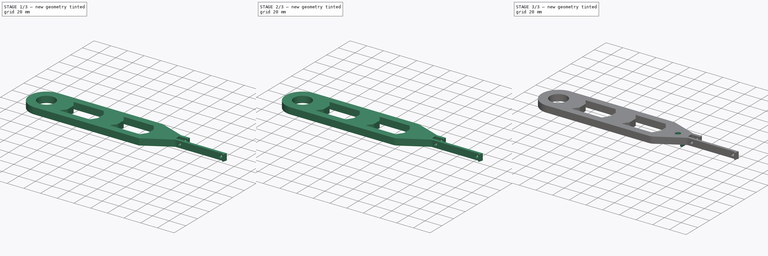
[diagram: build sequence overview — one tinted view per stage of 3, left to right]
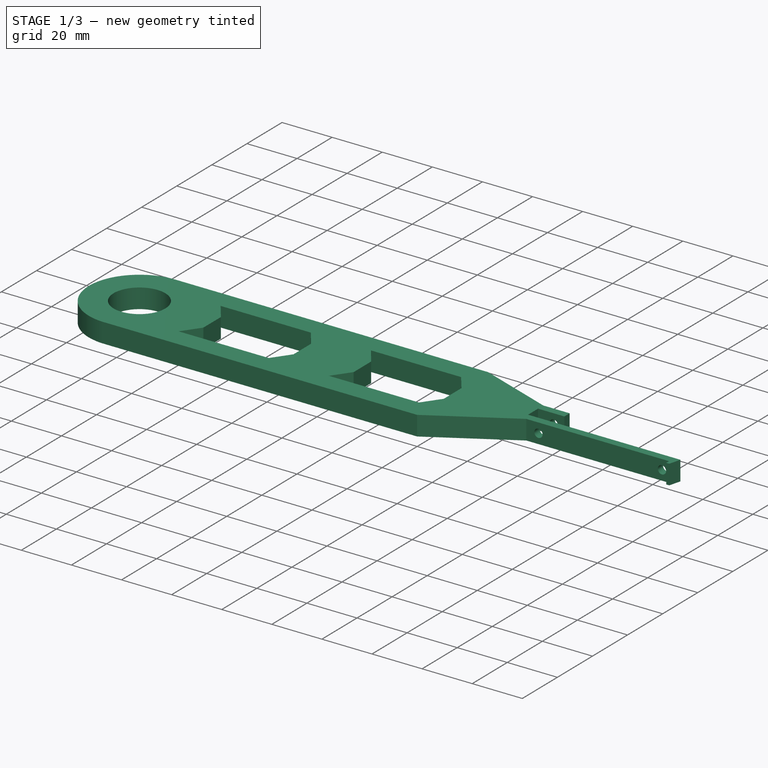
[diagram: stage 1 of 3 — iso view after this stage's code; geometry added in this stage tinted green]
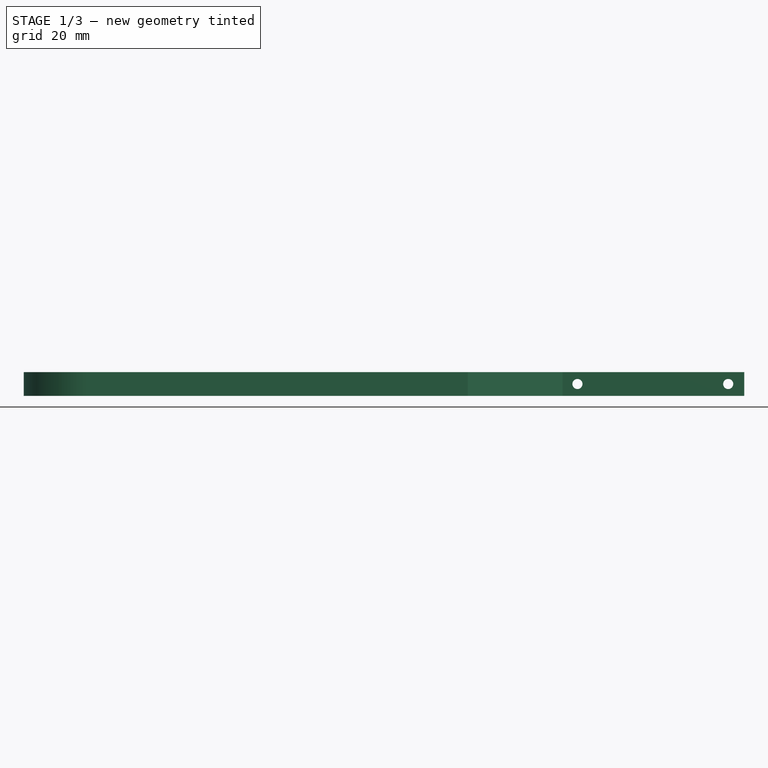
[diagram: stage 1 of 3 — front view after this stage's code; geometry added in this stage tinted green]
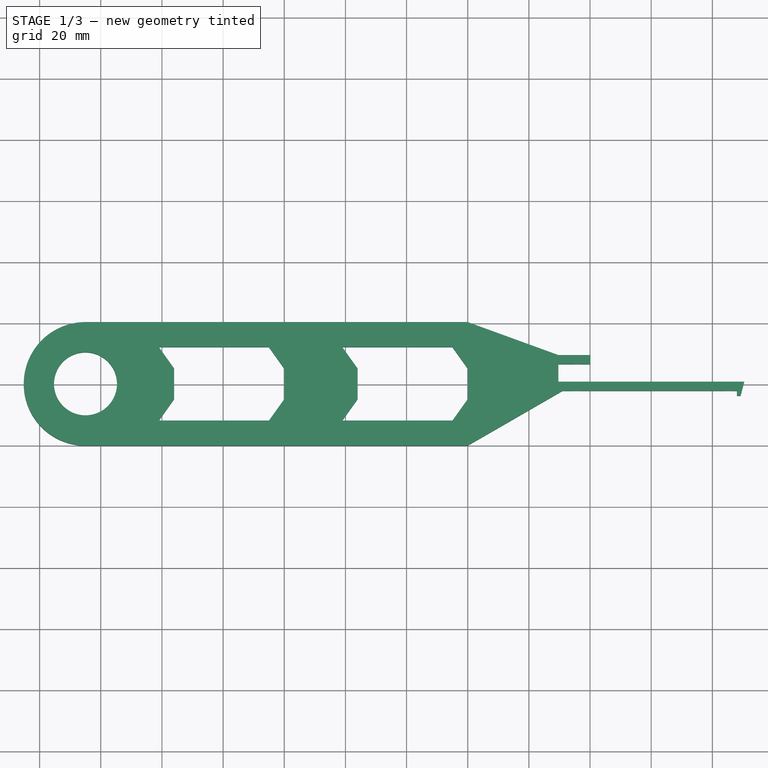
[diagram: stage 1 of 3 — top view after this stage's code; geometry added in this stage tinted green]
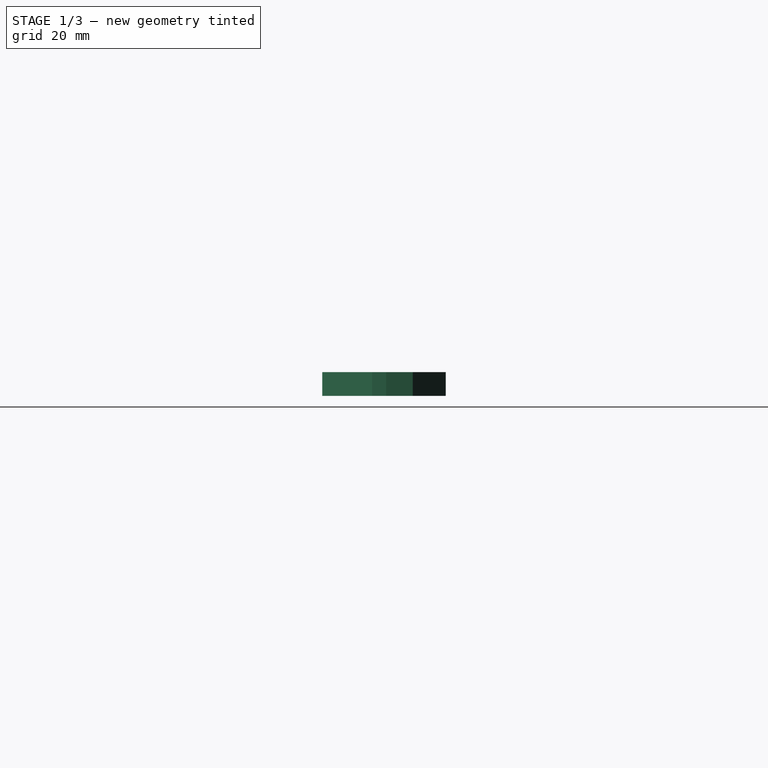
[diagram: stage 1 of 3 — right view after this stage's code; geometry added in this stage tinted green]
FCSTD DOCUMENT  (FreeCAD 0.18R16155 (Git))
Label: pro_w_spool_holder_v2
License: All rights reserved
LicenseURL: http://en.wikipedia.org/wiki/All_rights_reserved
objects: Sketcher::SketchObject×4, PartDesign::Pad×2, PartDesign::Hole×2, PartDesign::Fillet×2, PartDesign::Body×1, App::Part×1
note: 15 computed .brp shape members not serialized (recipe doc carries the construction recipe); baked Part::Feature solids carry a one-line shape summary decoded from their .brp

FEATURE [Sketcher::SketchObject] Sketch
  MapMode = 5
  Support = -> [XY_Plane001]
  sketch-geometry (43):
    g0: Circle CenterX=-125 CenterY=20.2 CenterZ=0 NormalX=0 NormalY=0 NormalZ=1 AngleXU=0 Radius=10.3
    g1: ArcOfCircle CenterX=-125 CenterY=20.2 CenterZ=0 NormalX=0 NormalY=0 NormalZ=1 AngleXU=0 Radius=20.2 StartAngle=1.5708 EndAngle=4.71239
    g2: LineSegment StartX=-125 StartY=40.4 StartZ=0 EndX=0 EndY=40.4 EndZ=0
    g3: LineSegment StartX=-125 StartY=0 StartZ=0 EndX=0 EndY=0 EndZ=0
    g4: LineSegment [constr] StartX=-125 StartY=40.4 StartZ=0 EndX=-125 EndY=20.2 EndZ=0
    g5: LineSegment [constr] StartX=-125 StartY=20.2 StartZ=0 EndX=-125 EndY=0 EndZ=0
    g6: LineSegment [constr] StartX=0 StartY=40.4 StartZ=0 EndX=-3.6e-15 EndY=0 EndZ=0
    g7: LineSegment StartX=31.0304 StartY=17.9154 StartZ=0 EndX=88.0304 EndY=17.9154 EndZ=0
    g8: LineSegment StartX=31.0304 StartY=17.9154 StartZ=0 EndX=-3.6e-15 EndY=0 EndZ=0
    g9: LineSegment StartX=0 StartY=40.4 StartZ=0 EndX=29.6304 EndY=29.6154 EndZ=0
    g10: LineSegment StartX=29.6304 StartY=29.6154 StartZ=0 EndX=40.1304 EndY=29.6154 EndZ=0
    g11: LineSegment StartX=40.1304 StartY=29.6154 StartZ=0 EndX=40.1304 EndY=26.6154 EndZ=0
    g12: LineSegment StartX=40.1304 StartY=26.6154 StartZ=0 EndX=29.6304 EndY=26.6154 EndZ=0
    g13: LineSegment StartX=29.6304 StartY=26.6154 StartZ=0 EndX=29.6304 EndY=20.9154 EndZ=0
    g14: LineSegment StartX=31.0304 StartY=20.9154 StartZ=0 EndX=88.0304 EndY=20.9154 EndZ=0
    g15: LineSegment StartX=29.6304 StartY=20.9154 StartZ=0 EndX=31.0304 EndY=20.9154 EndZ=0
    g16: LineSegment StartX=88.0304 StartY=20.9154 StartZ=0 EndX=90.4304 EndY=20.9154 EndZ=0
    g17: LineSegment StartX=90.4304 StartY=20.9154 StartZ=0 EndX=89.2304 EndY=16.3154 EndZ=0
    g18: LineSegment StartX=89.2304 StartY=16.3154 StartZ=0 EndX=88.0304 EndY=16.3154 EndZ=0
    g19: LineSegment StartX=88.0304 StartY=16.3154 StartZ=0 EndX=88.0304 EndY=17.9154 EndZ=0
    g20: LineSegment [constr] StartX=88.0304 StartY=20.9154 StartZ=0 EndX=88.0304 EndY=17.9154 EndZ=0
    g21: LineSegment [constr] StartX=-125 StartY=20.2 StartZ=0 EndX=-101 EndY=20.2 EndZ=0
    g22: LineSegment StartX=-101 StartY=32.2 StartZ=0 EndX=-96 EndY=25.2 EndZ=0
    g23: LineSegment StartX=-96 StartY=25.2 StartZ=0 EndX=-96 EndY=15.2 EndZ=0
    g24: LineSegment StartX=-96 StartY=15.2 StartZ=0 EndX=-101 EndY=8.2 EndZ=0
    g25: LineSegment StartX=-101 StartY=8.2 StartZ=0 EndX=-65 EndY=8.2 EndZ=0
    g26: LineSegment StartX=-65 StartY=8.2 StartZ=0 EndX=-60 EndY=15.2 EndZ=0
    g27: LineSegment StartX=-60 StartY=15.2 StartZ=0 EndX=-60 EndY=25.2 EndZ=0
    g28: LineSegment StartX=-60 StartY=25.2 StartZ=0 EndX=-65 EndY=32.2 EndZ=0
    g29: LineSegment StartX=-65 StartY=32.2 StartZ=0 EndX=-101 EndY=32.2 EndZ=0
    g30: LineSegment StartX=-41 StartY=32.2 StartZ=0 EndX=-36 EndY=25.2 EndZ=0
    g31: LineSegment StartX=-36 StartY=25.2 StartZ=0 EndX=-36 EndY=15.2 EndZ=0
    g32: LineSegment StartX=-36 StartY=15.2 StartZ=0 EndX=-41 EndY=8.2 EndZ=0
    g33: LineSegment StartX=-41 StartY=8.2 StartZ=0 EndX=-5 EndY=8.2 EndZ=0
    g34: LineSegment StartX=-5 StartY=8.2 StartZ=0 EndX=1.8e-15 EndY=15.2 EndZ=0
    g35: LineSegment StartX=1.8e-15 StartY=15.2 StartZ=0 EndX=3e-15 EndY=25.2 EndZ=0
    g36: LineSegment StartX=3e-15 StartY=25.2 StartZ=0 EndX=-5 EndY=32.2 EndZ=0
    g37: LineSegment StartX=-5 StartY=32.2 StartZ=0 EndX=-41 EndY=32.2 EndZ=0
    g38: LineSegment [constr] StartX=-41 StartY=32.2 StartZ=0 EndX=-41 EndY=8.2 EndZ=0
    g39: LineSegment [constr] StartX=-101 StartY=32.2 StartZ=0 EndX=-101 EndY=8.2 EndZ=0
    g40: LineSegment [constr] StartX=-96 StartY=25.2 StartZ=0 EndX=-101 EndY=20.2 EndZ=0
    g41: LineSegment [constr] StartX=-96 StartY=15.2 StartZ=0 EndX=-101 EndY=20.2 EndZ=0
    g42: LineSegment [constr] StartX=-60 StartY=25.2 StartZ=0 EndX=-36 EndY=25.2 EndZ=0
  constraints (120):
    c: Diameter(g0) = 20.6
    c: Coincident(g4,g2)
    c: Coincident(g4,g0)
    c: Coincident(g5,g0)
    c: Coincident(g5,g3)
    c: Coincident(g3,g1)
    c: Coincident(g1,g2)
    c: Coincident(g1,g0)
    c: Vertical(g4)
    c: Equal(g4,g5)
    c: Parallel(g5,g4)
    c: Parallel(g2,g3)
    c: Horizontal(g2)
    c: Equal(g2,g3)
    c: Coincident(g6,g2)
    c: Coincident(g6,g3)
    c: Distance(g3) = 125
    c: Distance(g6) = 40.4
    c: Coincident(g3,g-1)
    c: Equal(g7,g14)
    c: Parallel(g14,g7)
    c: Parallel(g14,g16)
    c: Parallel(g14,g15)
    c: Parallel(g7,g18)
    c: Perpendicular(g7,g19)
    c: Perpendicular(g13,g15)
    c: Parallel(g12,g14)
    c: Parallel(g13,g11)
    c: Coincident(g16,g14)
    c: Coincident(g14,g15)
    c: Coincident(g13,g15)
    c: Coincident(g11,g12)
    c: Coincident(g12,g13)
    c: Coincident(g10,g9)
    c: Coincident(g8,g7)
    c: Coincident(g8,g3)
    c: Coincident(g9,g2)
    c: Coincident(g19,g7)
    c: Coincident(g18,g19)
    c: Coincident(g18,g17)
    c: Coincident(g17,g16)
    c: Distance(g20) = 3
    c: Parallel(g20,g19)
    c: Coincident(g20,g7)
    c: Coincident(g20,g14)
    c: Distance(g7) = 57
    c: Distance(g16) = 2.4
    c: Distance(g18) = 1.2
    c: Distance(g19) = 1.6
    c: Angle(g8,g7) = 2.61799
    c: Parallel(g7,g3)
    c: Coincident(g10,g11)
    c: Parallel(g10,g12)
    c: Distance(g11) = 3
    c: Equal(g10,g12)
    c: Distance(g10) = 10.5
    c: Distance(g15) = 1.4
    c: Distance(g13) = 5.7
    c: Angle(g10,g9) = 2.79253
    c: Coincident(g0,g21)
    c: Perpendicular(g21,g5)
    c: Coincident(g22,g23)
    c: Coincident(g23,g24)
    c: Coincident(g24,g25)
    c: Coincident(g25,g26)
    c: Coincident(g26,g27)
    c: Coincident(g27,g28)
    c: Coincident(g28,g29)
    c: Coincident(g29,g22)
    c: Coincident(g30,g31)
    c: Coincident(g31,g32)
    c: Coincident(g32,g33)
    c: Coincident(g33,g34)
    c: Coincident(g34,g35)
    c: Coincident(g35,g36)
    c: Coincident(g36,g37)
    c: Coincident(g37,g30)
    c: Parallel(g23,g27)
    c: Parallel(g27,g31)
    c: Parallel(g31,g35)
    c: Parallel(g33,g37)
    c: Parallel(g29,g25)
    c: Parallel(g25,g33)
    c: Parallel(g33,g3)
    c: Parallel(g35,g6)
    c: Parallel(g36,g30)
    c: Parallel(g32,g34)
    c: Parallel(g28,g22)
    c: Parallel(g24,g26)
    c: Equal(g36,g34)
    c: Equal(g34,g32)
    c: Equal(g32,g30)
    c: Equal(g28,g26)
    c: Equal(g26,g24)
    c: Equal(g24,g22)
    c: Equal(g28,g30)
    c: Coincident(g38,g30)
    c: Coincident(g38,g32)
    c: Coincident(g39,g22)
    c: Coincident(g39,g24)
    c: Parallel(g31,g38)
    c: Parallel(g38,g39)
    c: Equal(g38,g39)
    c: PointOnObject(g21,g39)
    c: Coincident(g40,g22)
    c: Coincident(g40,g21)
    c: Coincident(g41,g21)
    c: Coincident(g41,g23)
    c: Equal(g41,g40)
    c: Perpendicular(g40,g41)
    c: Distance(g23) = 10
    c: Equal(g31,g27)
    c: Equal(g37,g29)
    c: Distance(g29) = 36
    c: Distance(g39) = 24
    c: PointOnObject(g35,g6)
    c: Coincident(g42,g30)
    c: Coincident(g42,g27)
    c: Parallel(g42,g29)
    c: Equal(g42,g21)
FEATURE [PartDesign::Pad] Pad
  Length = 7.8
  Length2 = 100
  Profile = -> Sketch
  Type = 0
FEATURE [Sketcher::SketchObject] Sketch001
  ExternalGeometry = -> [Pad]
  MapMode = 5
  Placement = pos=(0,17.9154,0) rot=(1,0,0;1.5708rad)
  Support = -> [Pad]
  sketch-geometry (10):
    g0: Circle CenterX=85.1804 CenterY=3.9 CenterZ=0 NormalX=0 NormalY=0 NormalZ=1 AngleXU=0 Radius=1.65
    g1: Circle CenterX=35.8804 CenterY=3.9 CenterZ=0 NormalX=0 NormalY=0 NormalZ=1 AngleXU=0 Radius=1.65
    g2: LineSegment [constr] StartX=33.0304 StartY=0 StartZ=0 EndX=88.0304 EndY=0 EndZ=0
    g3: LineSegment [constr] StartX=88.0304 StartY=3.9 StartZ=0 EndX=85.1804 EndY=3.9 EndZ=0
    g4: LineSegment [constr] StartX=85.1804 StartY=0 StartZ=0 EndX=85.1804 EndY=3.9 EndZ=0
    g5: LineSegment [constr] StartX=85.1804 StartY=7.8 StartZ=0 EndX=85.1804 EndY=3.9 EndZ=0
    g6: LineSegment [constr] StartX=33.0304 StartY=0 StartZ=0 EndX=33.0304 EndY=7.8 EndZ=0
    g7: LineSegment [constr] StartX=33.0304 StartY=3.9 StartZ=0 EndX=35.8804 EndY=3.9 EndZ=0
    g8: LineSegment [constr] StartX=35.8804 StartY=7.8 StartZ=0 EndX=35.8804 EndY=3.9 EndZ=0
    g9: LineSegment [constr] StartX=35.8804 StartY=0 StartZ=0 EndX=35.8804 EndY=3.9 EndZ=0
  constraints (30):
    c: Equal(g0,g1)
    c: Diameter(g0) = 3.3
    c: Equal(g5,g4)
    c: Parallel(g4,g5)
    c: Coincident(g4,g5)
    c: Coincident(g3,g0)
    c: Coincident(g4,g0)
    c: Perpendicular(g5,g3)
    c: PointOnObject(g3,g-4)
    c: PointOnObject(g4,g-5)
    c: PointOnObject(g5,g-3)
    c: Perpendicular(g-3,g5)
    c: Distance(g2) = 55
    c: Coincident(g2,g-5)
    c: Coincident(g6,g2)
    c: PointOnObject(g6,g-3)
    c: Perpendicular(g6,g2)
    c: Perpendicular(g6,g7)
    c: Perpendicular(g2,g9)
    c: Equal(g9,g8)
    c: Coincident(g9,g8)
    c: Parallel(g8,g9)
    c: Coincident(g7,g8)
    c: Coincident(g7,g1)
    c: PointOnObject(g8,g-3)
    c: PointOnObject(g7,g6)
    c: PointOnObject(g9,g2)
    c: PointOnObject(g2,g-5)
    c: Equal(g7,g3)
    c: Distance(g3) = 2.85
FEATURE [PartDesign::Hole] Hole
  BaseFeature = -> Pad
  Depth = 25
  DepthType = 1
  Diameter = 3.3
  DrillPoint = 1
  DrillPointAngle = 118
  HoleCutCountersinkAngle = 90
  HoleCutDepth = 0
  HoleCutDiameter = 3
  HoleCutType = 0
  ModelActualThread = false
  Profile = -> Sketch001
  Tapered = false
  TaperedAngle = 90
  ThreadAngle = 0
  ThreadClass = 0
  ThreadCutOffInner = 0
  ThreadCutOffOuter = 0
  ThreadDirection = 0
  ThreadFit = 0
  ThreadPitch = 0
  ThreadSize = 9
  ThreadType = 2
  Threaded = false
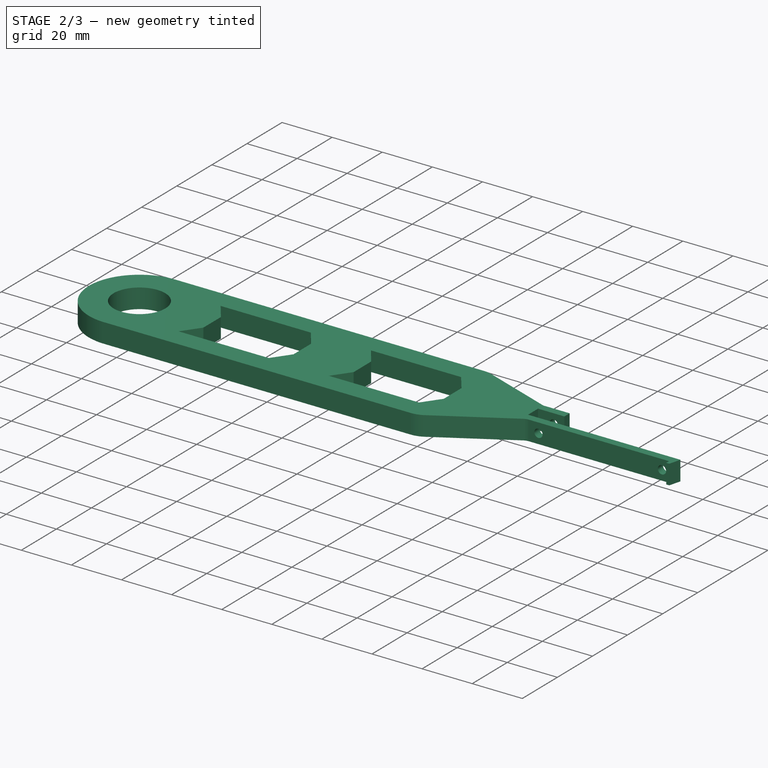
[diagram: stage 2 of 3 — iso view after this stage's code; geometry added in this stage tinted green]
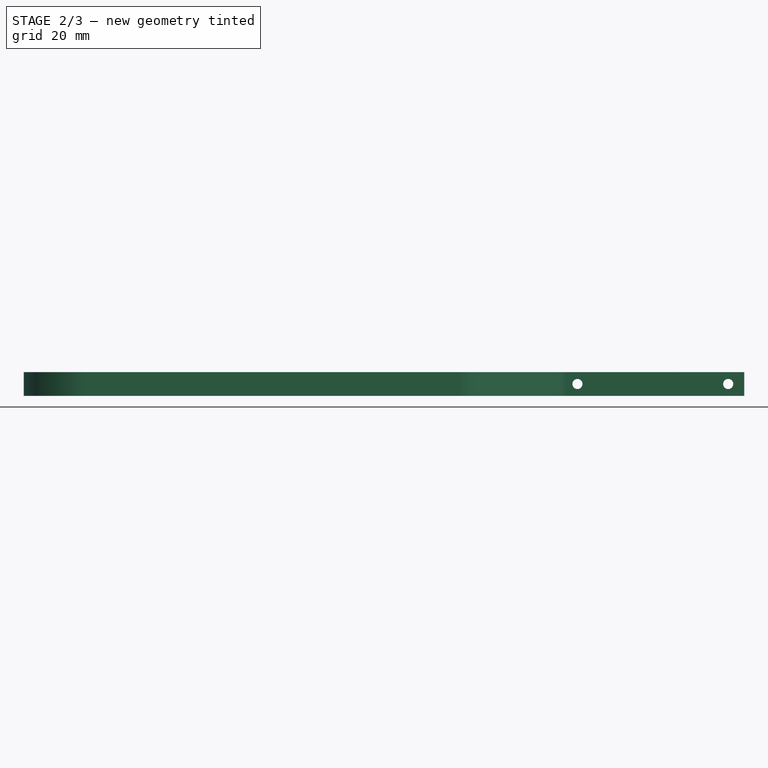
[diagram: stage 2 of 3 — front view after this stage's code; geometry added in this stage tinted green]
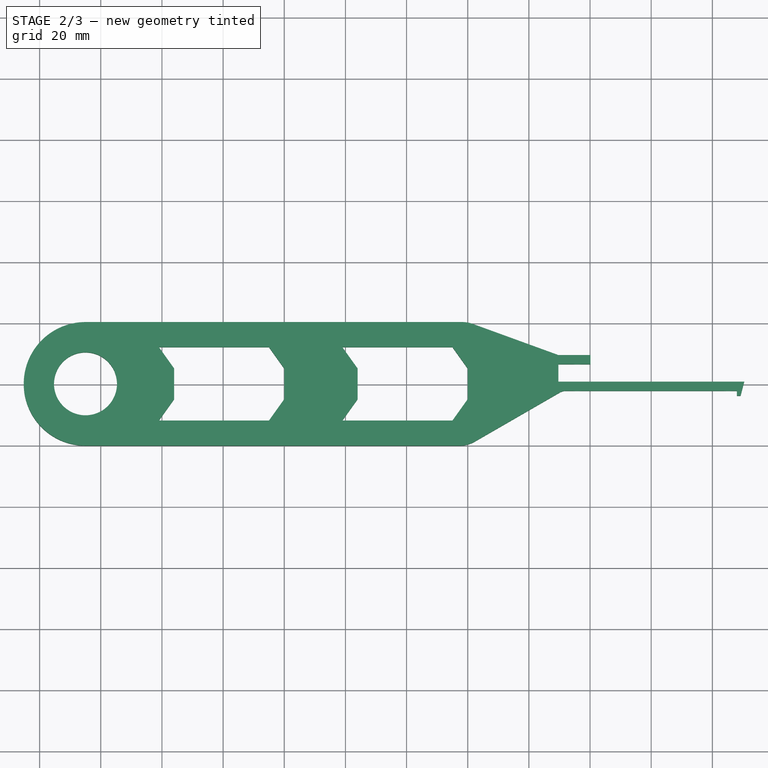
[diagram: stage 2 of 3 — top view after this stage's code; geometry added in this stage tinted green]
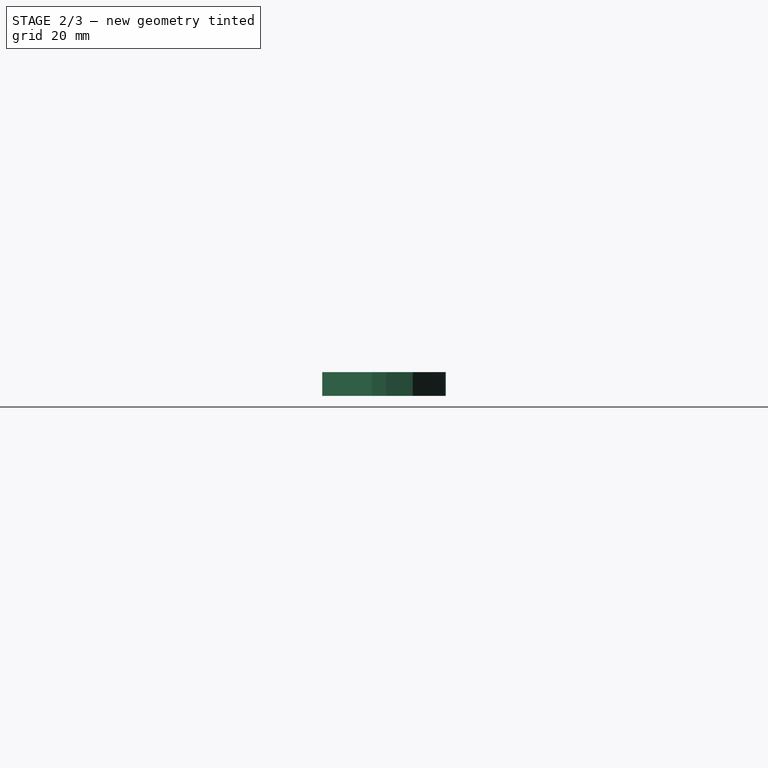
[diagram: stage 2 of 3 — right view after this stage's code; geometry added in this stage tinted green]
FEATURE [PartDesign::Fillet] Fillet
  Base = -> Hole [Edge71,Edge2]
  BaseFeature = -> Hole
  Radius = 10
FEATURE [PartDesign::Fillet] Fillet001
  Base = -> Fillet [Edge81]
  BaseFeature = -> Fillet
  Radius = 4
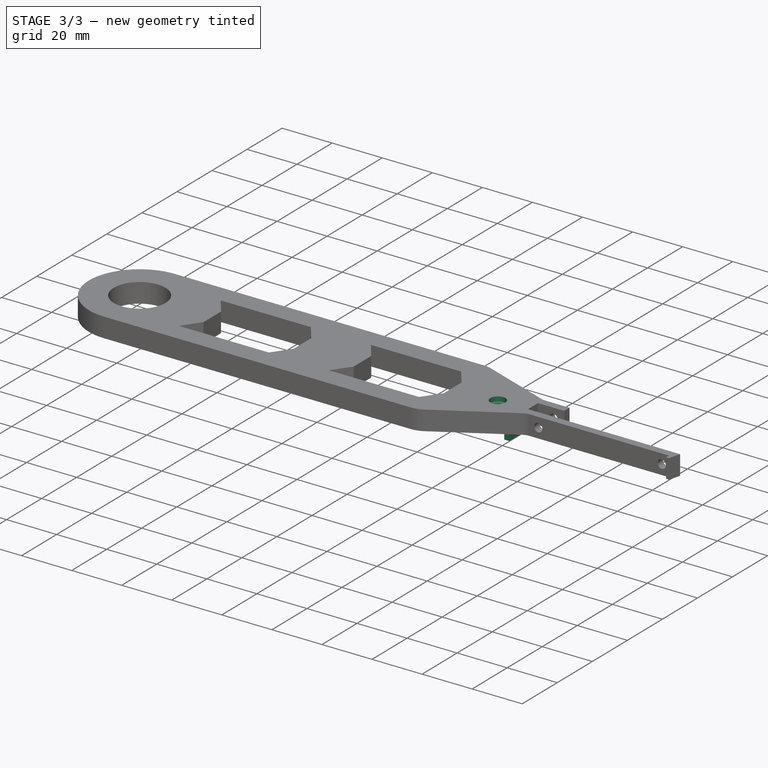
[diagram: stage 3 of 3 — iso view after this stage's code; geometry added in this stage tinted green]
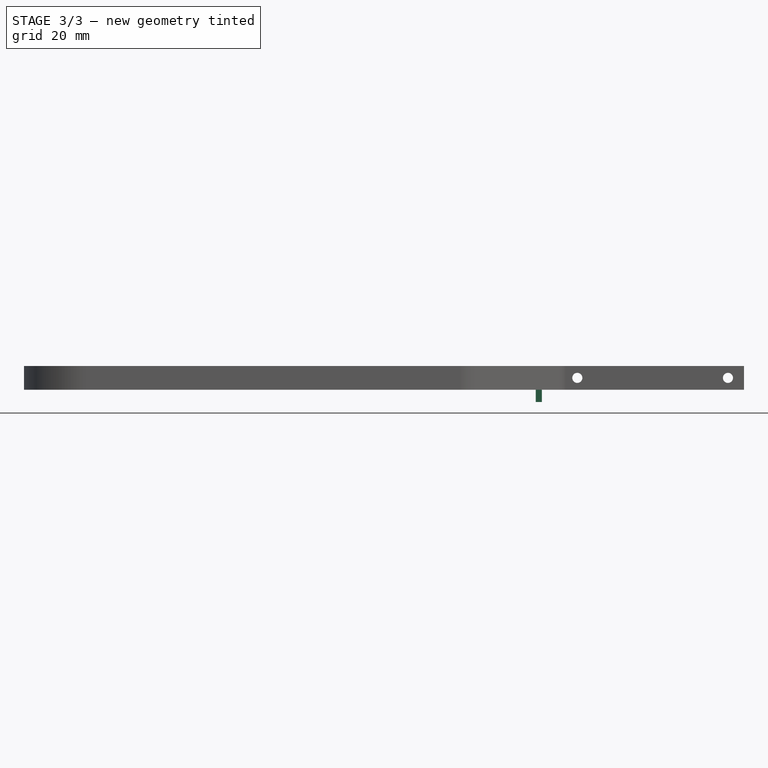
[diagram: stage 3 of 3 — front view after this stage's code; geometry added in this stage tinted green]
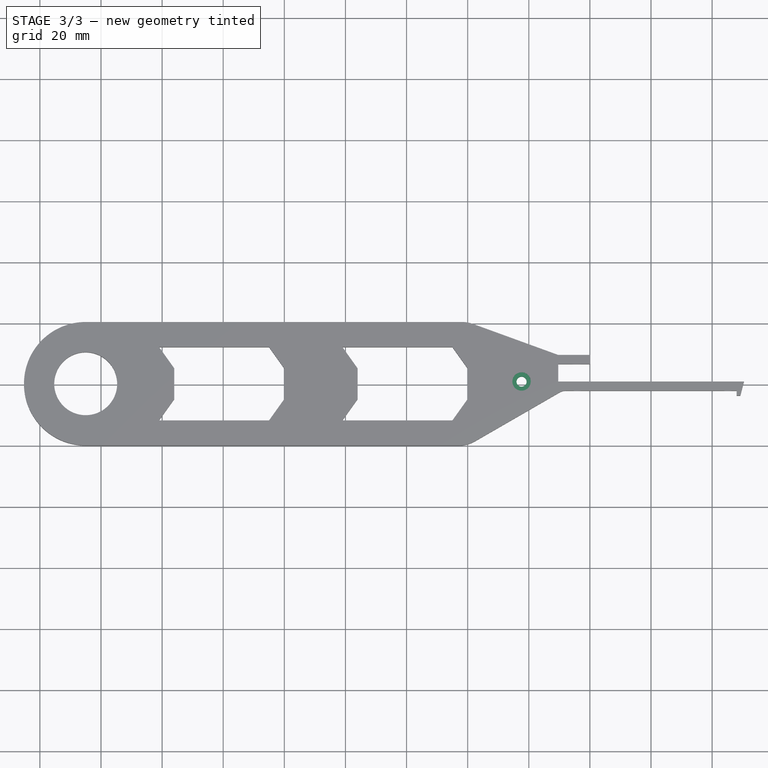
[diagram: stage 3 of 3 — top view after this stage's code; geometry added in this stage tinted green]
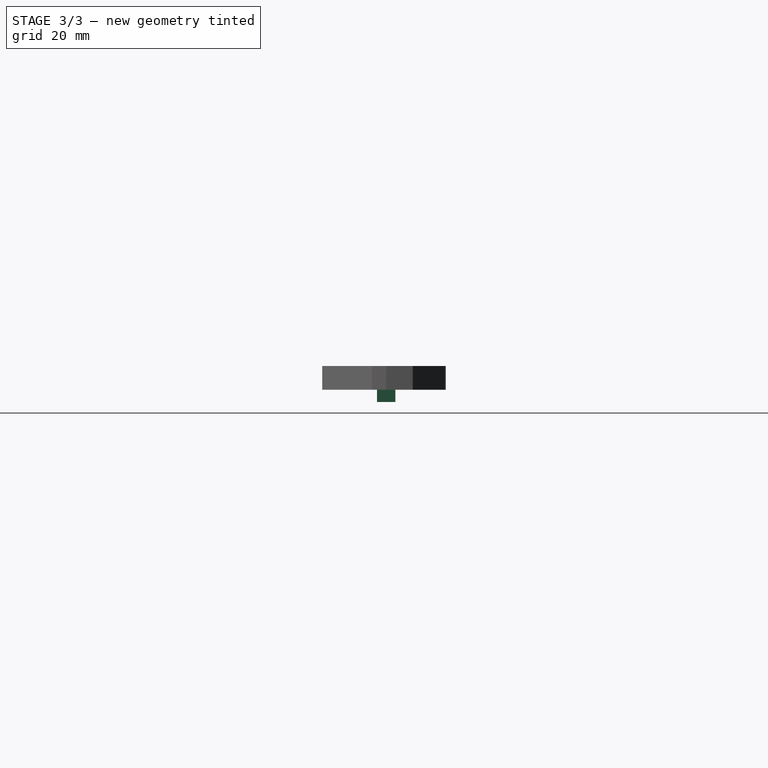
[diagram: stage 3 of 3 — right view after this stage's code; geometry added in this stage tinted green]
FEATURE [Sketcher::SketchObject] Sketch002
  ExternalGeometry = -> [Fillet001]
  MapMode = 5
  Placement = pos=(0,0,7.8) rot=(0,0,1;0rad)
  Support = -> [Fillet001]
  sketch-geometry (2):
    g0: Circle CenterX=17.6304 CenterY=20.9154 CenterZ=0 NormalX=0 NormalY=0 NormalZ=1 AngleXU=0 Radius=1.65
    g1: LineSegment [constr] StartX=17.6304 StartY=20.9154 StartZ=0 EndX=29.6304 EndY=20.9154 EndZ=0
  constraints (5):
    c: Diameter(g0) = 3.3
    c: Coincident(g1,g0)
    c: Coincident(g1,g-3)
    c: Perpendicular(g-3,g1)
    c: Distance(g1) = 12
FEATURE [PartDesign::Hole] Hole001
  BaseFeature = -> Fillet001
  Depth = 25
  DepthType = 1
  Diameter = 3.3
  DrillPoint = 1
  DrillPointAngle = 118
  HoleCutCountersinkAngle = 90
  HoleCutDepth = 1.8
  HoleCutDiameter = 6
  HoleCutType = 1
  ModelActualThread = false
  Profile = -> Sketch002
  Tapered = false
  TaperedAngle = 90
  ThreadAngle = 60
  ThreadClass = 0
  ThreadCutOffInner = 0.0378886
  ThreadCutOffOuter = 0.0757772
  ThreadDirection = 0
  ThreadFit = 0
  ThreadPitch = 0.35
  ThreadSize = 9
  ThreadType = 2
  Threaded = false
FEATURE [Sketcher::SketchObject] Sketch003
  ExternalGeometry = -> [Hole001]
  MapMode = 5
  Placement = pos=(0,0,0) rot=(1,0,0;3.14159rad)
  Support = -> [Hole001]
  sketch-geometry (8):
    g0: LineSegment StartX=22.2804 StartY=-17.9154 StartZ=0 EndX=24.2804 EndY=-17.9154 EndZ=0
    g1: LineSegment StartX=24.2804 StartY=-17.9154 StartZ=0 EndX=24.2804 EndY=-23.9154 EndZ=0
    g2: LineSegment StartX=24.2804 StartY=-23.9154 StartZ=0 EndX=22.2804 EndY=-23.9154 EndZ=0
    g3: LineSegment StartX=22.2804 StartY=-23.9154 StartZ=0 EndX=22.2804 EndY=-17.9154 EndZ=0
    g4: LineSegment [constr] StartX=19.2804 StartY=-20.9154 StartZ=0 EndX=22.2804 EndY=-20.9154 EndZ=0
    g5: LineSegment [constr] StartX=17.6304 StartY=-20.9154 StartZ=0 EndX=29.6304 EndY=-20.9154 EndZ=0
    g6: LineSegment [constr] StartX=19.2804 StartY=-20.9154 StartZ=0 EndX=22.2804 EndY=-17.9154 EndZ=0
    g7: LineSegment [constr] StartX=19.2804 StartY=-20.9154 StartZ=0 EndX=22.2804 EndY=-23.9154 EndZ=0
  constraints (22):
    c: Coincident(g0,g1)
    c: Coincident(g1,g2)
    c: Coincident(g2,g3)
    c: Coincident(g3,g0)
    c: Horizontal(g0)
    c: Horizontal(g2)
    c: Vertical(g1)
    c: Vertical(g3)
    c: Coincident(g-3,g5)
    c: Coincident(g5,g-4)
    c: Coincident(g6,g0)
    c: Coincident(g2,g7)
    c: Coincident(g7,g6)
    c: Equal(g6,g7)
    c: Perpendicular(g7,g6)
    c: Distance(g0) = 2
    c: Distance(g4) = 3
    c: Coincident(g4,g6)
    c: Parallel(g4,g5)
    c: PointOnObject(g4,g3)
    c: PointOnObject(g4,g-3)
    c: PointOnObject(g4,g5)
FEATURE [PartDesign::Pad] Pad001
  BaseFeature = -> Hole001
  Length = 4
  Length2 = 100
  Profile = -> Sketch003
  Type = 0
FEATURE [PartDesign::Body] Body
  Group = -> [Sketch,Pad,Sketch001,Hole,Fillet,Fillet001,Sketch002,Hole001,Sketch003,Pad001]
  Origin = -> Origin001
  Tip = -> Pad001
FEATURE [App::Part] Part
  Group = -> [Body]
  Origin = -> Origin
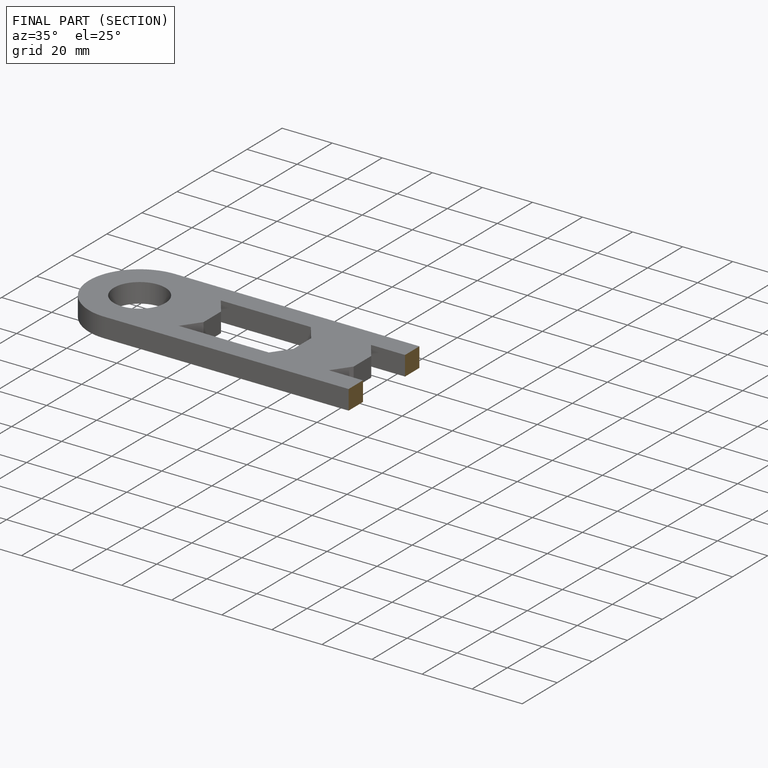
[diagram: finished part — half-section view (interior)]
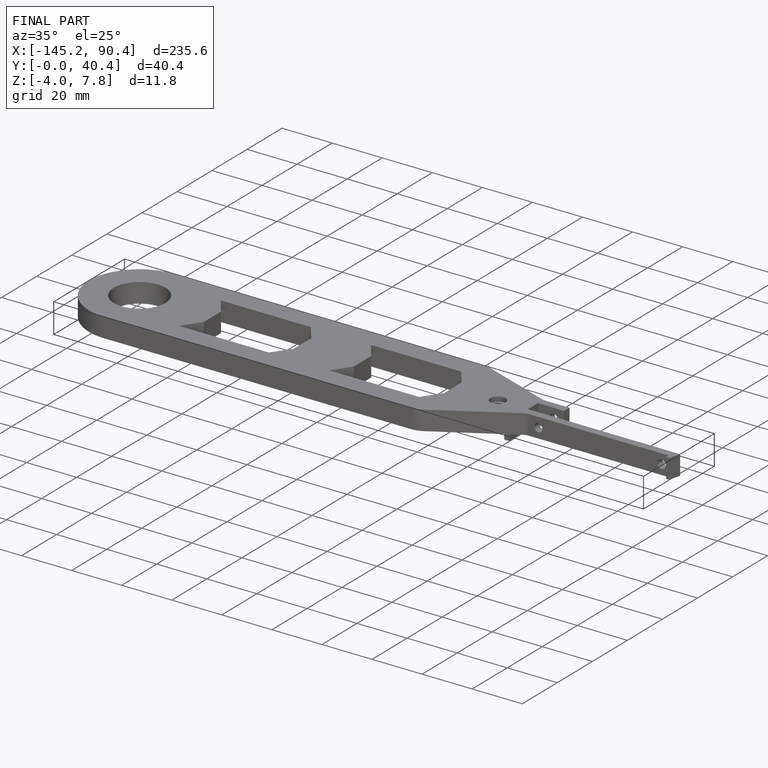
[diagram: finished part — iso view with bounding-box wireframe]
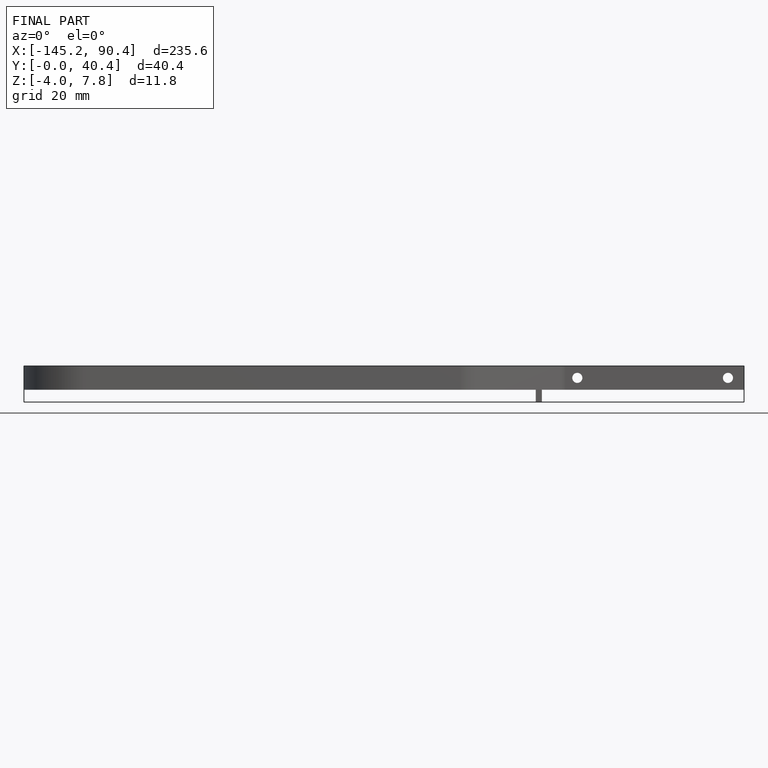
[diagram: finished part — front view with bounding-box wireframe]
